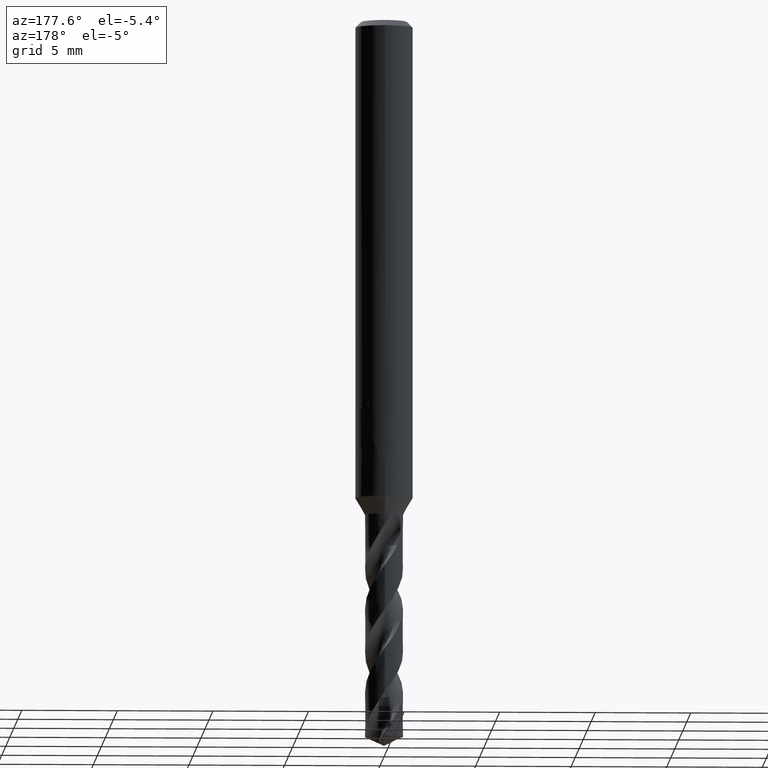
[diagram: clean part render]
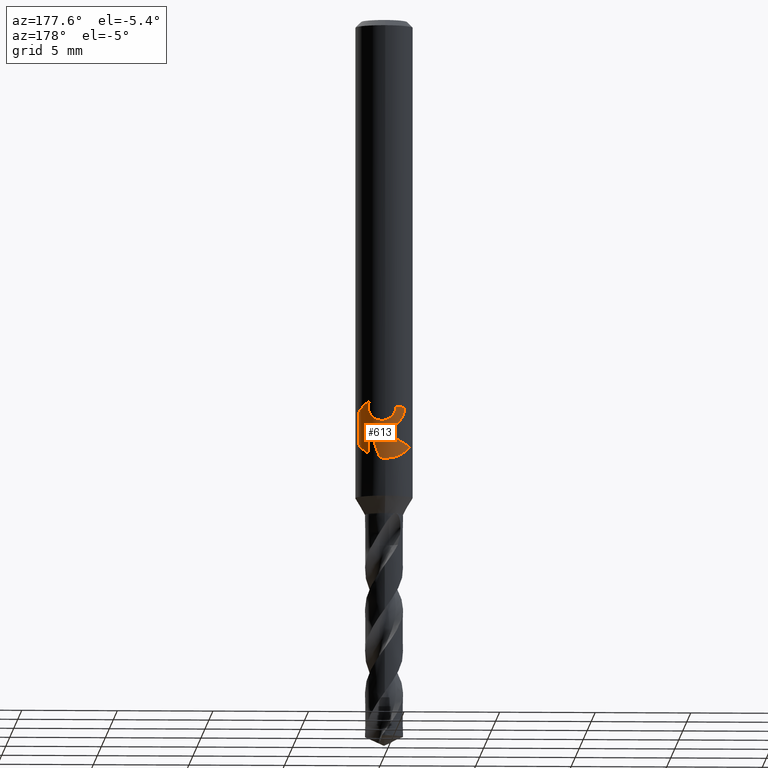
[diagram: same view with one face highlighted and labeled with its STEP entity id]
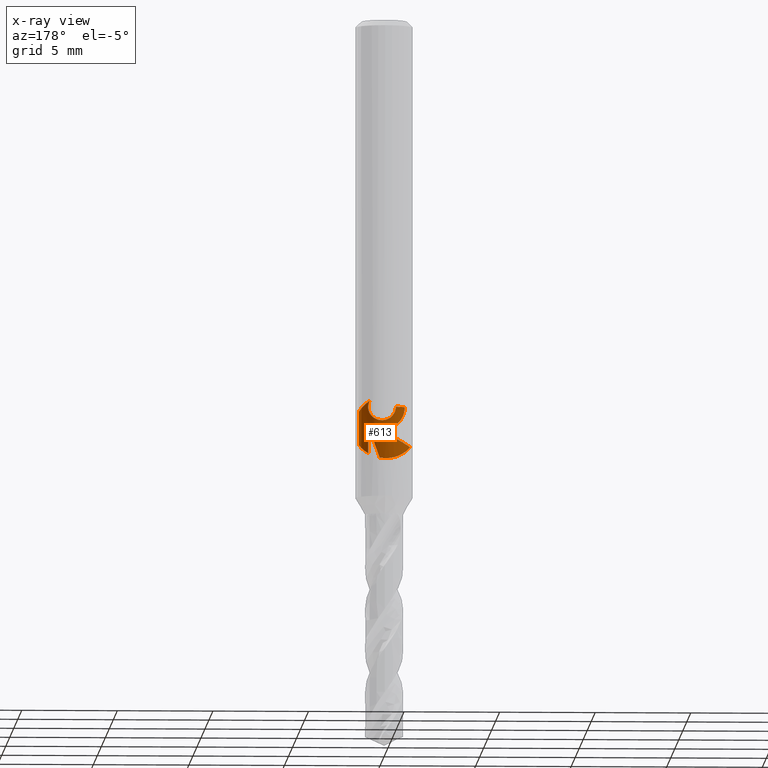
[diagram: x-ray of the same camera — body ghosted, the highlighted face saturated]
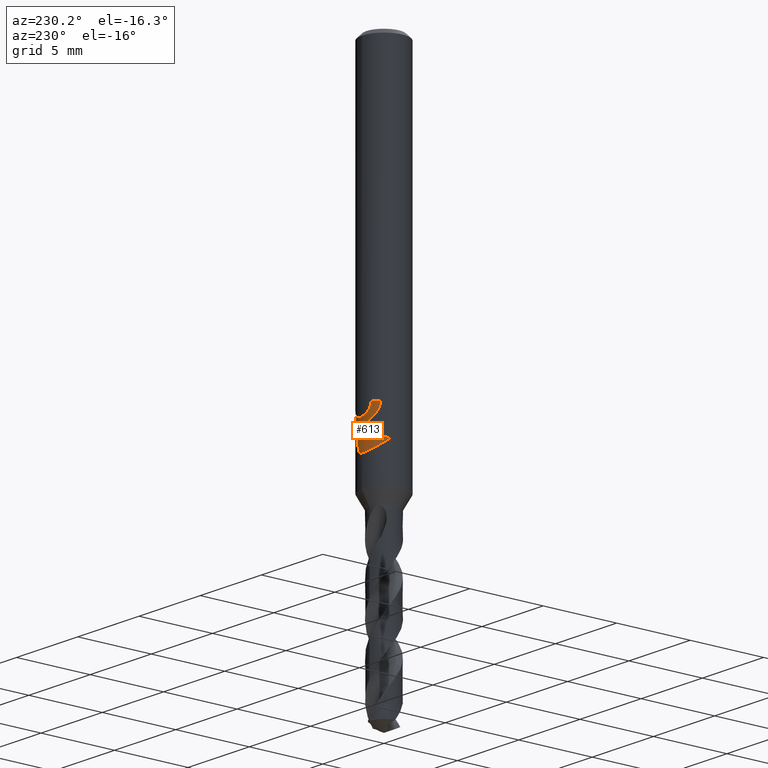
[diagram: same view with one face highlighted and labeled with its STEP entity id]
A machine part, auxiliary view. The second image highlights one B-rep face of the part: STEP entity #613.
The next image is the same camera in x-ray: the body ghosted, the highlighted face saturated — about 0% of this face is hidden behind the body in this view.
A second angle (auxiliary view) of the same face is appended — the face is thin or edge-on in the first view.
In plain terms, the highlighted cylindrical surface (edge-blend (fillet) strip) has radius 1.4625 mm, axis along (-0, -0, 1).
Its self-contained STEP definition (entity closure, byte-faithful):
#307=EDGE_CURVE('',#577,#607,#840,.T.);
#331=EDGE_CURVE('',#553,#593,#865,.T.);
#369=EDGE_CURVE('',#661,#581,#906,.T.);
#391=EDGE_CURVE('',#651,#553,#931,.T.);
#463=VERTEX_POINT('',#1013);
#497=VERTEX_POINT('',#1050);
#499=EDGE_CURVE('',#463,#767,#1052,.T.);
#507=VERTEX_POINT('',#1060);
#535=EDGE_CURVE('',#593,#463,#1091,.T.);
#553=VERTEX_POINT('',#1110);
#577=VERTEX_POINT('',#1135);
#581=VERTEX_POINT('',#1139);
#593=VERTEX_POINT('',#1152);
#607=VERTEX_POINT('',#1168);
#613=ADVANCED_FACE('',(#1175),#1176,.T.);
#651=VERTEX_POINT('',#1217);
#661=VERTEX_POINT('',#1229);
#675=EDGE_CURVE('',#507,#651,#1243,.T.);
#705=EDGE_CURVE('',#607,#497,#1276,.T.);
#765=EDGE_CURVE('',#581,#507,#1340,.T.);
#767=VERTEX_POINT('',#1342);
#781=EDGE_CURVE('',#767,#577,#1359,.T.);
#783=EDGE_CURVE('',#497,#661,#1361,.T.);
#840=CIRCLE('',#1516,1.4625);
#865=ELLIPSE('',#1592,4.45769206355329,1.4625);
#906=B_SPLINE_CURVE_WITH_KNOTS('',3,(#1670,#1671,#1672,#1673,#1674,#1675,#1676,#1677),.UNSPECIFIED.,.F.,.F.,(4,2,2,4),(3.02607403302247,3.62291359530972,3.94625689935066,4.26960020339159),.UNSPECIFIED.);
#931=LINE('',#2296,#2297);
#1013=CARTESIAN_POINT('',(-1.337052752443,0.592618078685257,-22.3720803908795));
#1050=CARTESIAN_POINT('',(-0.486378944383047,1.37925406378261,-20.6432837483006));
#1052=ELLIPSE('',#3160,1.63058283186268,1.4625);
#1060=CARTESIAN_POINT('',(1.33721006514658,0.592263025750114,-22.2901657003257));
#1091=B_SPLINE_CURVE_WITH_KNOTS('',3,(#3853,#3854,#3855,#3856,#3857,#3858,#3859,#3860,#3861,#3862,#3863,#3864,#3865,#3866,#3867,#3868),.UNSPECIFIED.,.F.,.F.,(4,2,2,2,2,2,2,4),(7.10491878573972,7.40333853751868,7.69656861618719,7.9897986948557,8.28302877352422,8.57625885219273,8.89033743505299,9.20441601791326),.UNSPECIFIED.);
#1110=CARTESIAN_POINT('',(0.873560781758957,1.17294407819498,-21.3198931596091));
#1135=CARTESIAN_POINT('',(-1.0350734039088,1.03321309443922,-20.3171221986971));
#1139=CARTESIAN_POINT('',(1.33721006514658,0.592263025750116,-20.5150484364821));
#1152=CARTESIAN_POINT('',(0.29010312703583,1.43343867175545,-22.9998328990228));
#1168=CARTESIAN_POINT('',(-0.562333990228013,1.35006915875974,-20.3171221986971));
#1175=FACE_OUTER_BOUND('',#4143,.T.);
#1176=CYLINDRICAL_SURFACE('',#4144,1.4625);
#1217=CARTESIAN_POINT('',(0.873560781758956,1.17294407819498,-22.7587351791531));
#1229=CARTESIAN_POINT('',(0.799431726384364,1.22466941043292,-20.000000276873));
#1243=B_SPLINE_CURVE_WITH_KNOTS('',3,(#4661,#4662,#4663,#4664,#4665,#4666,#4667,#4668),.UNSPECIFIED.,.F.,.F.,(4,2,2,4),(5.56297349595162,5.88631680218415,6.20966010841668,6.80649966623686),.UNSPECIFIED.);
#1276=B_SPLINE_CURVE_WITH_KNOTS('',3,(#4740,#4741,#4742,#4743,#4744,#4745,#4746,#4747,#4748,#4749,#4750,#4751,#4752,#4753,#4754,#4755,#4756,#4757,#4758,#4759,#4760,#4761,#4762,#4763,#4764,#4765,#4766),.UNSPECIFIED.,.F.,.F.,(4,2,2,2,2,2,2,2,2,2,3,2,4),(-2.76573652054388,-2.4920638651669,-2.21839120978992,-1.94319270130902,-1.66799419282813,-1.39643560673703,-1.12487702064593,-0.840751425442098,-0.556625830238264,-0.278312915119132,0.0,0.278312915119132,0.556625830238264),.UNSPECIFIED.);
#1340=LINE('',#4975,#4976);
#1342=CARTESIAN_POINT('',(0.573127035830619,1.34552281690056,-21.4303299674267));
#1359=B_SPLINE_CURVE_WITH_KNOTS('',3,(#5098,#5099,#5100,#5101,#5102,#5103,#5104,#5105,#5106,#5107,#5108,#5109,#5110,#5111,#5112,#5113,#5114,#5115,#5116,#5117),.UNSPECIFIED.,.F.,.F.,(4,2,2,2,2,2,2,2,2,4),(1.53121722645469,1.77945579317241,2.02769435989013,2.25545730509922,2.48322025030831,2.93874614072649,3.41334225635727,3.65064031417265,3.88793837198804,4.12269192300454),.UNSPECIFIED.);
#1361=B_SPLINE_CURVE_WITH_KNOTS('',3,(#5120,#5121,#5122,#5123,#5124,#5125,#5126,#5127,#5128,#5129,#5130,#5131,#5132,#5133,#5134,#5135,#5136,#5137,#5138,#5139,#5140,#5141,#5142,#5143,#5144,#5145,#5146),.UNSPECIFIED.,.F.,.F.,(4,2,2,2,2,2,2,2,2,2,3,2,4),(-2.76573652054388,-2.4920638651669,-2.21839120978992,-1.94319270130902,-1.66799419282813,-1.39643560673703,-1.12487702064593,-0.840751425442098,-0.556625830238264,-0.278312915119132,0.0,0.278312915119132,0.556625830238264),.UNSPECIFIED.);
#1516=AXIS2_PLACEMENT_3D('',#5331,#5332,#5333);
#1592=AXIS2_PLACEMENT_3D('',#5346,#5347,#5348);
#1670=CARTESIAN_POINT('',(0.581237439257257,1.34203922789376,-19.8923299206546));
#1671=CARTESIAN_POINT('',(0.760491650631019,1.26440415276922,-19.9646831563128));
#1672=CARTESIAN_POINT('',(0.916354029122405,1.15241489028811,-20.0665113275098));
#1673=CARTESIAN_POINT('',(1.10117816923966,0.966841743176643,-20.2261499145304));
#1674=CARTESIAN_POINT('',(1.16077926169828,0.894551246806822,-20.2868165548453));
#1675=CARTESIAN_POINT('',(1.26514633835559,0.739618261843745,-20.4096914656383));
#1676=CARTESIAN_POINT('',(1.30995427171955,0.65704876871599,-20.4719561245739));
#1677=CARTESIAN_POINT('',(1.34652941891588,0.570758069582964,-20.5295544028721));
#2296=CARTESIAN_POINT('',(0.873560781758957,1.17294407819498,-22.0393141693811));
#2297=VECTOR('',#5421,1.0);
#3160=AXIS2_PLACEMENT_3D('',#5571,#5572,#5573);
#3853=CARTESIAN_POINT('',(0.298160874465882,1.43178432137586,-22.9982051376038));
#3854=CARTESIAN_POINT('',(0.200124671189261,1.45219979855388,-23.0182672667087));
#3855=CARTESIAN_POINT('',(0.0994581663033044,1.4625,-23.0292930959436));
#3856=CARTESIAN_POINT('',(-0.0977285375900521,1.4625,-23.0327274992976));
#3857=CARTESIAN_POINT('',(-0.197081461761414,1.45254732014075,-23.0254974904321));
#3858=CARTESIAN_POINT('',(-0.391306690123448,1.41266198856979,-22.9933649847647));
#3859=CARTESIAN_POINT('',(-0.486185428894376,1.38274647832584,-22.9684801095618));
#3860=CARTESIAN_POINT('',(-0.664990781029697,1.30619724248819,-22.9046937273158));
#3861=CARTESIAN_POINT('',(-0.749141929204815,1.25949208881433,-22.8657396470037));
#3862=CARTESIAN_POINT('',(-0.902464059189416,1.15459628137851,-22.7796423484886));
#3863=CARTESIAN_POINT('',(-0.971649438213042,1.09640808544359,-22.7325217764937));
#3864=CARTESIAN_POINT('',(-1.09706998411524,0.971456003395667,-22.6343531092332));
#3865=CARTESIAN_POINT('',(-1.15697970517668,0.899498251226456,-22.5793112841523));
#3866=CARTESIAN_POINT('',(-1.26237930795911,0.74437734186403,-22.4682579892937));
#3867=CARTESIAN_POINT('',(-1.30791386099331,0.661268847530449,-22.4122125765347));
#3868=CARTESIAN_POINT('',(-1.34516242556702,0.573972385087168,-22.3610363219578));
#4143=EDGE_LOOP('',(#5696,#5697,#5698,#5699,#5700,#5701,#5702,#5703,#5704,#5705,#5706));
#4144=AXIS2_PLACEMENT_3D('',#5707,#5708,#5709);
#4661=CARTESIAN_POINT('',(1.34652941855291,0.570758070439272,-22.2756597343805));
#4662=CARTESIAN_POINT('',(1.3099542712128,0.65704876975957,-22.3332580133853));
#4663=CARTESIAN_POINT('',(1.26514633759959,0.739618263209603,-22.3955226728114));
#4664=CARTESIAN_POINT('',(1.16077926007343,0.894551248975342,-22.5183975841274));
#4665=CARTESIAN_POINT('',(1.10117816699665,0.966841745822842,-22.5790642244794));
#4666=CARTESIAN_POINT('',(0.916354026097365,1.15241489259798,-22.7387028095282));
#4667=CARTESIAN_POINT('',(0.760491647690967,1.26440415444456,-22.8405309780406));
#4668=CARTESIAN_POINT('',(0.581237436722854,1.34203922899141,-22.9128842100645));
#4740=CARTESIAN_POINT('',(-0.351794706543909,1.41955864072172,-19.8133209150422));
#4741=CARTESIAN_POINT('',(-0.415331818904811,1.40381288767111,-19.8768580274031));
#4742=CARTESIAN_POINT('',(-0.470429831686106,1.38532967440555,-19.9571340166373));
#4743=CARTESIAN_POINT('',(-0.543957228488263,1.35814328739911,-20.1338582640058));
#4744=CARTESIAN_POINT('',(-0.562348199187247,1.35006324032279,-20.2304177941278));
#4745=CARTESIAN_POINT('',(-0.562348199187247,1.35006324032279,-20.4133748487471));
#4746=CARTESIAN_POINT('',(-0.543754716436039,1.35823571536531,-20.5104284731483));
#4747=CARTESIAN_POINT('',(-0.469482608050977,1.38566208234307,-20.6879026303016));
#4748=CARTESIAN_POINT('',(-0.413842366180122,1.40428161937025,-20.768436670862));
#4749=CARTESIAN_POINT('',(-0.28637080826567,1.43567036510887,-20.8948553129205));
#4750=CARTESIAN_POINT('',(-0.206061276773238,1.45061269739671,-20.9496699011523));
#4751=CARTESIAN_POINT('',(-0.0296374575189696,1.46487544469083,-21.0225213739965));
#4752=CARTESIAN_POINT('',(0.0665267921354766,1.46378762838183,-21.0405166027747));
#4753=CARTESIAN_POINT('',(0.250690931933638,1.44396330030564,-21.0405166027747));
#4754=CARTESIAN_POINT('',(0.348830110872207,1.42333096914878,-21.020994225725));
#4755=CARTESIAN_POINT('',(0.526292188670825,1.36768783423513,-20.9456191473895));
#4756=CARTESIAN_POINT('',(0.605767528597179,1.33300367375628,-20.8898846951565));
#4757=CARTESIAN_POINT('',(0.729608505369153,1.26937944914029,-20.7643301861787));
#4758=CARTESIAN_POINT('',(0.783536668829436,1.2356841077223,-20.6857964272644));
#4759=CARTESIAN_POINT('',(0.856455854390416,1.18630877496521,-20.5109798100028));
#4760=CARTESIAN_POINT('',(0.875400981188567,1.1715713260976,-20.4144129842932));
#4761=CARTESIAN_POINT('',(0.875400981188567,1.1715713260976,-20.3216420125868));
#4762=CARTESIAN_POINT('',(0.875400981188567,1.1715713260976,-20.2288710408804));
#4763=CARTESIAN_POINT('',(0.856455854390417,1.18630877496521,-20.1323042151708));
#4764=CARTESIAN_POINT('',(0.783536668829437,1.2356841077223,-19.9574875979092));
#4765=CARTESIAN_POINT('',(0.729608505369153,1.26937944914029,-19.8789538389949));
#4766=CARTESIAN_POINT('',(0.668327951808166,1.30086279016348,-19.8168253738229));
#4975=CARTESIAN_POINT('',(1.33721006514658,0.592263025750114,-21.4026070684039));
#4976=VECTOR('',#5879,1.0);
#5098=CARTESIAN_POINT('',(0.624949131312906,1.32224991331868,-21.4089496355366));
#5099=CARTESIAN_POINT('',(0.551910714677444,1.35677086291497,-21.4411288067338));
#5100=CARTESIAN_POINT('',(0.473973174232958,1.3860828114413,-21.4665287043098));
#5101=CARTESIAN_POINT('',(0.313161033010952,1.43101582719145,-21.5006575081254));
#5102=CARTESIAN_POINT('',(0.230279401712065,1.44662523789874,-21.5093686300866));
#5103=CARTESIAN_POINT('',(0.0724262908669292,1.46267722955513,-21.5093686300866));
#5104=CARTESIAN_POINT('',(-0.00530950519346135,1.46451213613004,-21.5020089153421));
#5105=CARTESIAN_POINT('',(-0.158920470039833,1.4558737142731,-21.4715545347588));
#5106=CARTESIAN_POINT('',(-0.23479811373641,1.44541505132917,-21.448468194795));
#5107=CARTESIAN_POINT('',(-0.451308515632429,1.39893570728121,-21.3582786780491));
#5108=CARTESIAN_POINT('',(-0.580721905519662,1.34713783505033,-21.269104839826));
#5109=CARTESIAN_POINT('',(-0.787551414470814,1.23810414629028,-21.0654914189034));
#5110=CARTESIAN_POINT('',(-0.878507541980538,1.17202716282518,-20.9352961086122));
#5111=CARTESIAN_POINT('',(-0.971252924712582,1.09416793374748,-20.7177461885482));
#5112=CARTESIAN_POINT('',(-0.995145877014605,1.07195123015387,-20.6414405332741));
#5113=CARTESIAN_POINT('',(-1.02708406582076,1.04138997710541,-20.4852830205075));
#5114=CARTESIAN_POINT('',(-1.03510901790186,1.03317741509299,-20.4054012133379));
#5115=CARTESIAN_POINT('',(-1.03510901790186,1.03317741509299,-20.2480506770606));
#5116=CARTESIAN_POINT('',(-1.02725298719431,1.04121455171434,-20.1689570151504));
#5117=CARTESIAN_POINT('',(-1.01159297732079,1.05621299851652,-20.0915912130155));
#5120=CARTESIAN_POINT('',(-0.351794706543909,1.41955864072172,-19.8133209150422));
#5121=CARTESIAN_POINT('',(-0.415331818904811,1.40381288767111,-19.8768580274031));
#5122=CARTESIAN_POINT('',(-0.470429831686106,1.38532967440555,-19.9571340166373));
#5123=CARTESIAN_POINT('',(-0.543957228488263,1.35814328739911,-20.1338582640058));
#5124=CARTESIAN_POINT('',(-0.562348199187247,1.35006324032279,-20.2304177941278));
#5125=CARTESIAN_POINT('',(-0.562348199187247,1.35006324032279,-20.4133748487471));
#5126=CARTESIAN_POINT('',(-0.543754716436039,1.35823571536531,-20.5104284731483));
#5127=CARTESIAN_POINT('',(-0.469482608050977,1.38566208234307,-20.6879026303016));
#5128=CARTESIAN_POINT('',(-0.413842366180122,1.40428161937025,-20.768436670862));
#5129=CARTESIAN_POINT('',(-0.28637080826567,1.43567036510887,-20.8948553129205));
#5130=CARTESIAN_POINT('',(-0.206061276773238,1.45061269739671,-20.9496699011523));
#5131=CARTESIAN_POINT('',(-0.0296374575189696,1.46487544469083,-21.0225213739965));
#5132=CARTESIAN_POINT('',(0.0665267921354766,1.46378762838183,-21.0405166027747));
#5133=CARTESIAN_POINT('',(0.250690931933638,1.44396330030564,-21.0405166027747));
#5134=CARTESIAN_POINT('',(0.348830110872207,1.42333096914878,-21.020994225725));
#5135=CARTESIAN_POINT('',(0.526292188670825,1.36768783423513,-20.9456191473895));
#5136=CARTESIAN_POINT('',(0.605767528597179,1.33300367375628,-20.8898846951565));
#5137=CARTESIAN_POINT('',(0.729608505369153,1.26937944914029,-20.7643301861787));
#5138=CARTESIAN_POINT('',(0.783536668829436,1.2356841077223,-20.6857964272644));
#5139=CARTESIAN_POINT('',(0.856455854390416,1.18630877496521,-20.5109798100028));
#5140=CARTESIAN_POINT('',(0.875400981188567,1.1715713260976,-20.4144129842932));
#5141=CARTESIAN_POINT('',(0.875400981188567,1.1715713260976,-20.3216420125868));
#5142=CARTESIAN_POINT('',(0.875400981188567,1.1715713260976,-20.2288710408804));
#5143=CARTESIAN_POINT('',(0.856455854390417,1.18630877496521,-20.1323042151708));
#5144=CARTESIAN_POINT('',(0.783536668829437,1.2356841077223,-19.9574875979092));
#5145=CARTESIAN_POINT('',(0.729608505369153,1.26937944914029,-19.8789538389949));
#5146=CARTESIAN_POINT('',(0.668327951808166,1.30086279016348,-19.8168253738229));
#5331=CARTESIAN_POINT('',(0.0,0.0,-20.3171221986971));
#5332=DIRECTION('',(0.0,0.0,-1.0));
#5333=DIRECTION('',(1.0,0.0,0.0));
#5346=CARTESIAN_POINT('',(0.0,0.0,-23.8351219173269));
#5347=DIRECTION('',(-0.944648353914092,-0.0,0.328084573619969));
#5348=DIRECTION('',(0.328084573619969,0.0,0.944648353914092));
#5421=DIRECTION('',(-0.0,-0.0,1.0));
#5571=CARTESIAN_POINT('',(0.0,0.0,-21.7128911336578));
#5572=DIRECTION('',(0.442195774284071,0.0,-0.896918556617774));
#5573=DIRECTION('',(0.896918556617774,0.0,0.442195774284071));
#5696=ORIENTED_EDGE('',*,*,#499,.T.);
#5697=ORIENTED_EDGE('',*,*,#781,.T.);
#5698=ORIENTED_EDGE('',*,*,#307,.T.);
#5699=ORIENTED_EDGE('',*,*,#705,.T.);
#5700=ORIENTED_EDGE('',*,*,#783,.T.);
#5701=ORIENTED_EDGE('',*,*,#369,.T.);
#5702=ORIENTED_EDGE('',*,*,#765,.T.);
#5703=ORIENTED_EDGE('',*,*,#675,.T.);
#5704=ORIENTED_EDGE('',*,*,#391,.T.);
#5705=ORIENTED_EDGE('',*,*,#331,.T.);
#5706=ORIENTED_EDGE('',*,*,#535,.T.);
#5707=CARTESIAN_POINT('',(0.0,0.0,-23.5));
#5708=DIRECTION('',(-0.0,-0.0,1.0));
#5709=DIRECTION('',(1.0,0.0,0.0));
#5879=DIRECTION('',(0.0,0.0,-1.0));